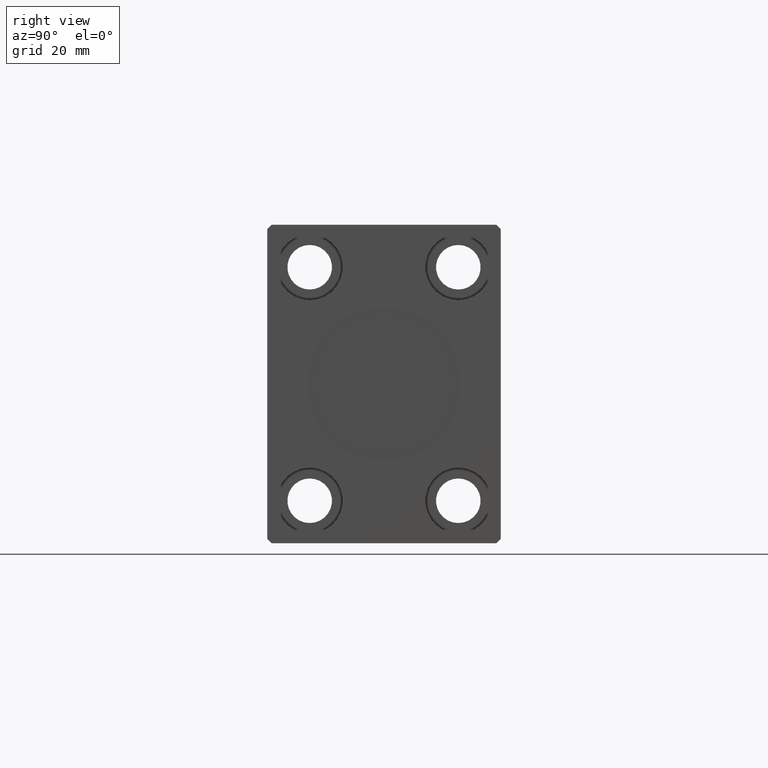
[diagram: clean part render]
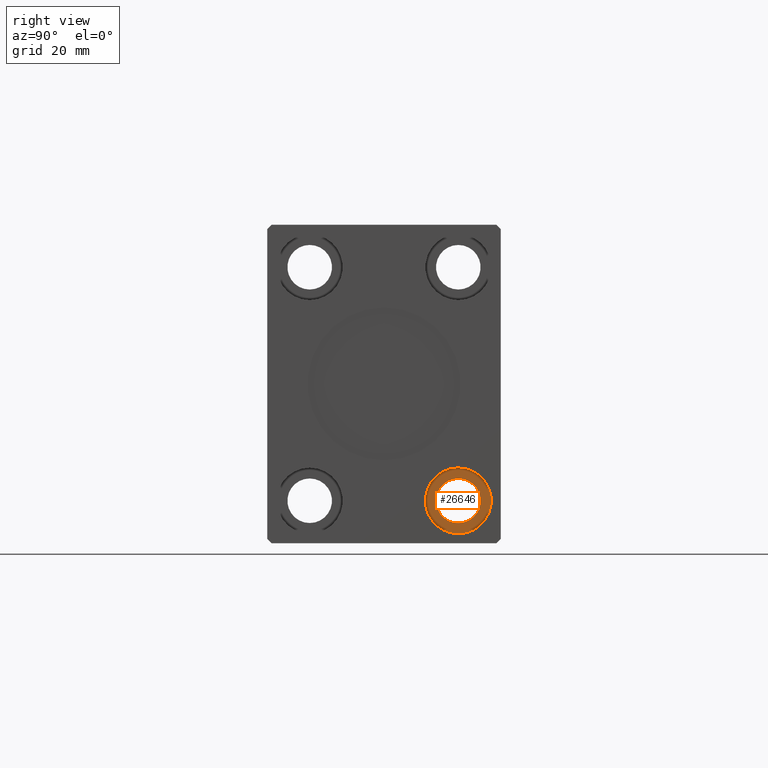
[diagram: same view with one face highlighted and labeled with its STEP entity id]
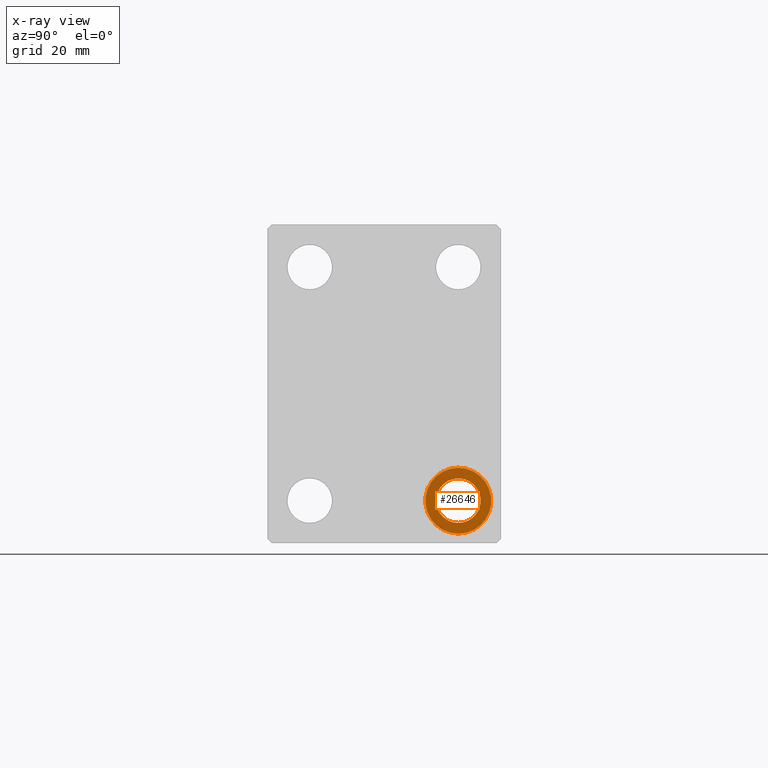
[diagram: x-ray of the same camera — body ghosted, the highlighted face saturated]
A machine part, right view. The second image highlights one B-rep face of the part: STEP entity #26646.
The next image is the same camera in x-ray: the body ghosted, the highlighted face saturated — about 0% of this face is hidden behind the body in this view.
In plain terms, the highlighted planar face has unit normal (1, 0, -0).
Its self-contained STEP definition (entity closure, byte-faithful):
#135 = CARTESIAN_POINT ( 'NONE',  ( 134.6699999999999875, 17.50000000000000000, -27.50000000000000000 ) ) ;
#350 = CARTESIAN_POINT ( 'NONE',  ( 134.6699999999999875, 17.50000000000000000, -19.74999999999999645 ) ) ;
#2364 = ORIENTED_EDGE ( 'NONE', *, *, #5836, .F. ) ;
#2559 = DIRECTION ( 'NONE',  ( 0.000000000000000000, 0.000000000000000000, 1.000000000000000000 ) ) ;
#3999 = DIRECTION ( 'NONE',  ( 1.000000000000000000, 0.000000000000000000, 0.000000000000000000 ) ) ;
#4506 = DIRECTION ( 'NONE',  ( -1.000000000000000000, -0.000000000000000000, -0.000000000000000000 ) ) ;
#4907 = AXIS2_PLACEMENT_3D ( 'NONE', #21527, #4506, #40920 ) ;
#5836 = EDGE_CURVE ( 'NONE', #42516, #17724, #14538, .T. ) ;
#5971 = CARTESIAN_POINT ( 'NONE',  ( 134.6699999999999875, 17.50000000000000000, -32.75000000000000000 ) ) ;
#10489 = CARTESIAN_POINT ( 'NONE',  ( 134.6699999999999875, 17.50000000000000000, -27.50000000000000000 ) ) ;
#11025 = FACE_BOUND ( 'NONE', #27812, .T. ) ;
#13290 = DIRECTION ( 'NONE',  ( 0.000000000000000000, 0.000000000000000000, -1.000000000000000000 ) ) ;
#14538 = CIRCLE ( 'NONE', #4907, 7.750000000000003553 ) ;
#17724 = VERTEX_POINT ( 'NONE', #23481 ) ;
#19387 = EDGE_LOOP ( 'NONE', ( #22207, #2364 ) ) ;
#19722 = AXIS2_PLACEMENT_3D ( 'NONE', #135, #20581, #13290 ) ;
#20581 = DIRECTION ( 'NONE',  ( 1.000000000000000000, 0.000000000000000000, 0.000000000000000000 ) ) ;
#20926 = DIRECTION ( 'NONE',  ( 1.000000000000000000, 0.000000000000000000, -0.000000000000000000 ) ) ;
#21527 = CARTESIAN_POINT ( 'NONE',  ( 134.6699999999999875, 17.50000000000000000, -27.50000000000000000 ) ) ;
#21901 = CIRCLE ( 'NONE', #27393, 7.750000000000003553 ) ;
#22207 = ORIENTED_EDGE ( 'NONE', *, *, #41432, .F. ) ;
#22452 = CARTESIAN_POINT ( 'NONE',  ( 134.6699999999999875, 17.50000000000000000, -22.25000000000000000 ) ) ;
#23481 = CARTESIAN_POINT ( 'NONE',  ( 134.6699999999999875, 17.50000000000000000, -35.25000000000000000 ) ) ;
#23591 = EDGE_CURVE ( 'NONE', #37455, #35420, #34676, .T. ) ;
#24167 = PLANE ( 'NONE',  #32683 ) ;
#26646 = ADVANCED_FACE ( 'NONE', ( #11025, #40138 ), #24167, .T. ) ;
#27390 = ORIENTED_EDGE ( 'NONE', *, *, #37040, .F. ) ;
#27393 = AXIS2_PLACEMENT_3D ( 'NONE', #34455, #34902, #2559 ) ;
#27812 = EDGE_LOOP ( 'NONE', ( #37138, #27390 ) ) ;
#30684 = CIRCLE ( 'NONE', #19722, 5.250000000000000888 ) ;
#32683 = AXIS2_PLACEMENT_3D ( 'NONE', #37312, #20926, #40745 ) ;
#34455 = CARTESIAN_POINT ( 'NONE',  ( 134.6699999999999875, 17.50000000000000000, -27.50000000000000000 ) ) ;
#34676 = CIRCLE ( 'NONE', #40838, 5.250000000000000888 ) ;
#34902 = DIRECTION ( 'NONE',  ( -1.000000000000000000, -0.000000000000000000, -0.000000000000000000 ) ) ;
#35420 = VERTEX_POINT ( 'NONE', #5971 ) ;
#36556 = DIRECTION ( 'NONE',  ( 0.000000000000000000, 0.000000000000000000, -1.000000000000000000 ) ) ;
#37040 = EDGE_CURVE ( 'NONE', #35420, #37455, #30684, .T. ) ;
#37138 = ORIENTED_EDGE ( 'NONE', *, *, #23591, .F. ) ;
#37312 = CARTESIAN_POINT ( 'NONE',  ( 134.6699999999999875, 17.50000000000000000, -27.50000000000000000 ) ) ;
#37455 = VERTEX_POINT ( 'NONE', #22452 ) ;
#40138 = FACE_OUTER_BOUND ( 'NONE', #19387, .T. ) ;
#40745 = DIRECTION ( 'NONE',  ( 0.000000000000000000, 0.000000000000000000, 1.000000000000000000 ) ) ;
#40838 = AXIS2_PLACEMENT_3D ( 'NONE', #10489, #3999, #36556 ) ;
#40920 = DIRECTION ( 'NONE',  ( 0.000000000000000000, 0.000000000000000000, 1.000000000000000000 ) ) ;
#41432 = EDGE_CURVE ( 'NONE', #17724, #42516, #21901, .T. ) ;
#42516 = VERTEX_POINT ( 'NONE', #350 ) ;